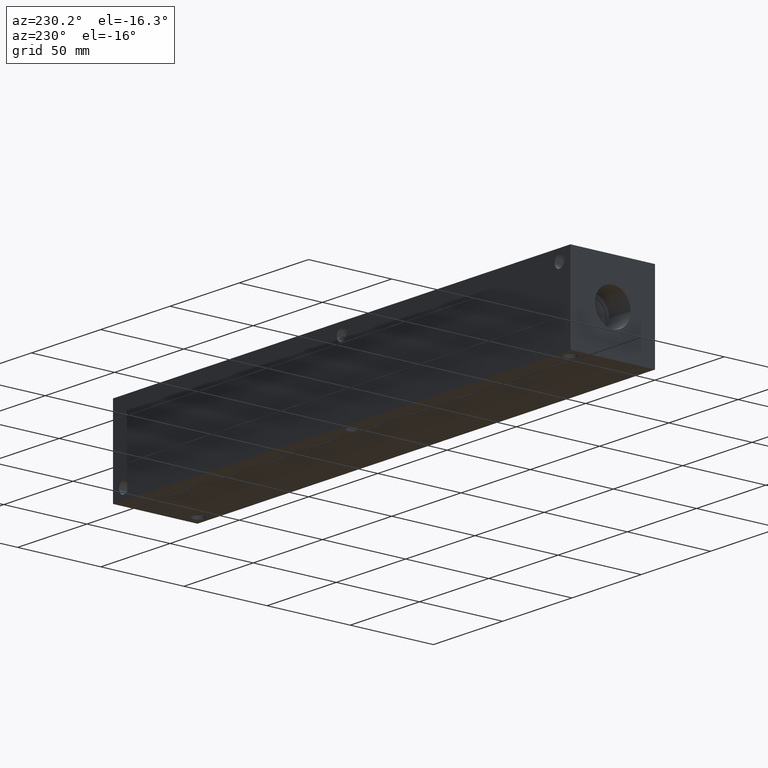
[diagram: clean part render]
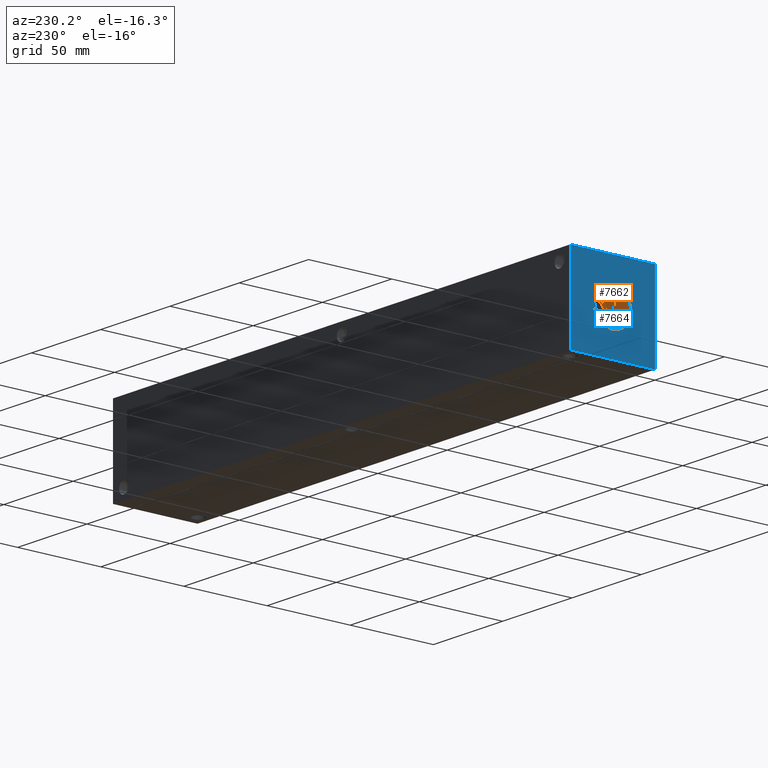
[diagram: same view with the hole feature highlighted: cylindrical wall and planar end face, labeled with their STEP entity ids]
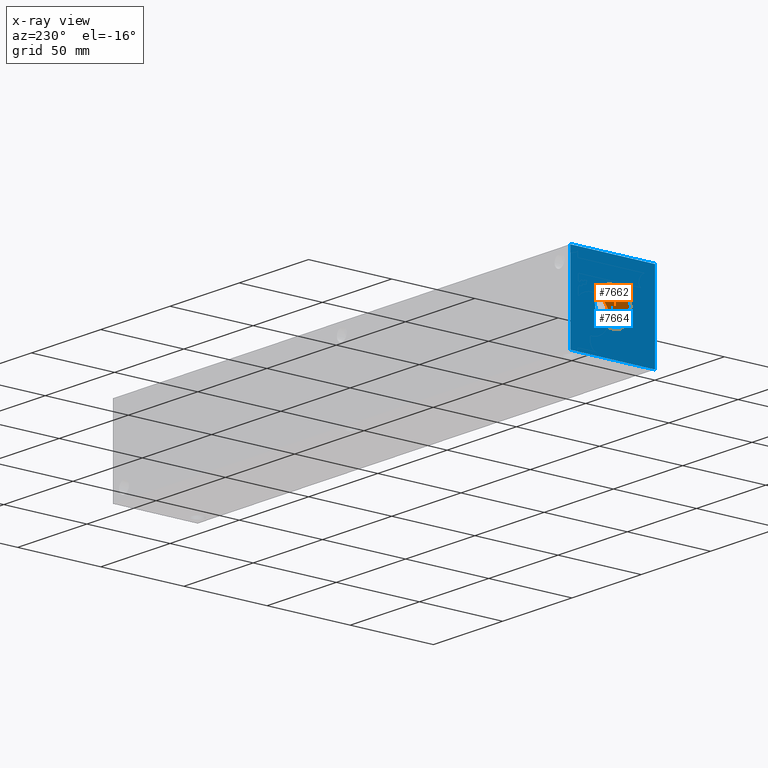
[diagram: x-ray of the same camera — body ghosted, the hole faces saturated]
A machine part, auxiliary view. The highlighted faces form one hole feature of diameter 21.59 mm: the cylindrical wall (entity #7662, orange) and its adjacent planar end face (entity #7664, blue) — they share a circular edge in the B-rep.
The next image is the same camera in x-ray (body ghosted, the hole faces saturated) — the bore reads through the body.
Wall:
#78=CYLINDRICAL_SURFACE('',#8073,10.795);
#191=CIRCLE('',#8070,10.795);
#192=CIRCLE('',#8071,10.795);
#194=CIRCLE('',#8074,10.795);
#195=CIRCLE('',#8075,10.795);
#867=FACE_OUTER_BOUND('',#1312,.T.);
#1312=EDGE_LOOP('',(#6787,#6788,#6789,#6790,#6791,#6792));
#2015=LINE('',#13294,#2703);
#2703=VECTOR('',#9547,10.795);
#3666=VERTEX_POINT('',#13283);
#3667=VERTEX_POINT('',#13284);
#3669=VERTEX_POINT('',#13290);
#3670=VERTEX_POINT('',#13291);
#4718=EDGE_CURVE('',#3666,#3667,#191,.T.);
#4719=EDGE_CURVE('',#3667,#3666,#192,.T.);
#4721=EDGE_CURVE('',#3669,#3670,#194,.T.);
#4722=EDGE_CURVE('',#3670,#3669,#195,.T.);
#4723=EDGE_CURVE('',#3670,#3667,#2015,.T.);
#6787=ORIENTED_EDGE('',*,*,#4721,.F.);
#6788=ORIENTED_EDGE('',*,*,#4722,.F.);
#6789=ORIENTED_EDGE('',*,*,#4723,.T.);
#6790=ORIENTED_EDGE('',*,*,#4718,.F.);
#6791=ORIENTED_EDGE('',*,*,#4719,.F.);
#6792=ORIENTED_EDGE('',*,*,#4723,.F.);
#7662=ADVANCED_FACE('',(#867),#78,.F.);
#8070=AXIS2_PLACEMENT_3D('',#13285,#9535,#9536);
#8071=AXIS2_PLACEMENT_3D('',#13286,#9537,#9538);
#8073=AXIS2_PLACEMENT_3D('',#13289,#9541,#9542);
#8074=AXIS2_PLACEMENT_3D('',#13292,#9543,#9544);
#8075=AXIS2_PLACEMENT_3D('',#13293,#9545,#9546);
#9535=DIRECTION('center_axis',(-1.,0.,0.));
#9536=DIRECTION('ref_axis',(0.,1.,0.));
#9537=DIRECTION('center_axis',(-1.,0.,0.));
#9538=DIRECTION('ref_axis',(0.,1.,0.));
#9541=DIRECTION('center_axis',(-1.,0.,0.));
#9542=DIRECTION('ref_axis',(0.,1.,0.));
#9543=DIRECTION('center_axis',(1.,0.,0.));
#9544=DIRECTION('ref_axis',(0.,1.,0.));
#9545=DIRECTION('center_axis',(1.,0.,0.));
#9546=DIRECTION('ref_axis',(0.,1.,0.));
#9547=DIRECTION('',(1.,0.,0.));
#13283=CARTESIAN_POINT('',(15.367,36.195,25.4));
#13284=CARTESIAN_POINT('',(15.367,14.605,25.4));
#13285=CARTESIAN_POINT('Origin',(15.367,25.4,25.4));
#13286=CARTESIAN_POINT('Origin',(15.367,25.4,25.4));
#13289=CARTESIAN_POINT('Origin',(7.6835,25.4,25.4));
#13290=CARTESIAN_POINT('',(0.,36.195,25.4));
#13291=CARTESIAN_POINT('',(0.,14.605,25.4));
#13292=CARTESIAN_POINT('Origin',(0.,25.4,25.4));
#13293=CARTESIAN_POINT('Origin',(0.,25.4,25.4));
#13294=CARTESIAN_POINT('',(7.6835,14.605,25.4));
End face:
#194=CIRCLE('',#8074,10.795);
#195=CIRCLE('',#8075,10.795);
#249=FACE_BOUND('',#1315,.T.);
#477=PLANE('',#8077);
#869=FACE_OUTER_BOUND('',#1314,.T.);
#1314=EDGE_LOOP('',(#6798,#6799,#6800,#6801));
#1315=EDGE_LOOP('',(#6802,#6803));
#1585=LINE('',#12001,#2273);
#2017=LINE('',#13300,#2705);
#2018=LINE('',#13301,#2706);
#2019=LINE('',#13302,#2707);
#2273=VECTOR('',#8443,10.);
#2705=VECTOR('',#9553,10.);
#2706=VECTOR('',#9554,10.);
#2707=VECTOR('',#9555,10.);
#3269=VERTEX_POINT('',#11994);
#3272=VERTEX_POINT('',#11999);
#3669=VERTEX_POINT('',#13290);
#3670=VERTEX_POINT('',#13291);
#3671=VERTEX_POINT('',#13298);
#3672=VERTEX_POINT('',#13299);
#4149=EDGE_CURVE('',#3272,#3269,#1585,.T.);
#4721=EDGE_CURVE('',#3669,#3670,#194,.T.);
#4722=EDGE_CURVE('',#3670,#3669,#195,.T.);
#4725=EDGE_CURVE('',#3671,#3672,#2017,.T.);
#4726=EDGE_CURVE('',#3672,#3269,#2018,.T.);
#4727=EDGE_CURVE('',#3671,#3272,#2019,.T.);
#6798=ORIENTED_EDGE('',*,*,#4725,.T.);
#6799=ORIENTED_EDGE('',*,*,#4726,.T.);
#6800=ORIENTED_EDGE('',*,*,#4149,.F.);
#6801=ORIENTED_EDGE('',*,*,#4727,.F.);
#6802=ORIENTED_EDGE('',*,*,#4721,.T.);
#6803=ORIENTED_EDGE('',*,*,#4722,.T.);
#7664=ADVANCED_FACE('',(#869,#249),#477,.T.);
#8074=AXIS2_PLACEMENT_3D('',#13292,#9543,#9544);
#8075=AXIS2_PLACEMENT_3D('',#13293,#9545,#9546);
#8077=AXIS2_PLACEMENT_3D('',#13297,#9551,#9552);
#8443=DIRECTION('',(0.,-1.,0.));
#9543=DIRECTION('center_axis',(1.,0.,0.));
#9544=DIRECTION('ref_axis',(0.,1.,0.));
#9545=DIRECTION('center_axis',(1.,0.,0.));
#9546=DIRECTION('ref_axis',(0.,1.,0.));
#9551=DIRECTION('center_axis',(-1.,0.,0.));
#9552=DIRECTION('ref_axis',(0.,-1.,0.));
#9553=DIRECTION('',(0.,-1.,0.));
#9554=DIRECTION('',(0.,0.,1.));
#9555=DIRECTION('',(0.,0.,1.));
#11994=CARTESIAN_POINT('',(0.,0.,50.8));
#11999=CARTESIAN_POINT('',(0.,50.8,50.8));
#12001=CARTESIAN_POINT('',(0.,50.8,50.8));
#13290=CARTESIAN_POINT('',(0.,36.195,25.4));
#13291=CARTESIAN_POINT('',(0.,14.605,25.4));
#13292=CARTESIAN_POINT('Origin',(0.,25.4,25.4));
#13293=CARTESIAN_POINT('Origin',(0.,25.4,25.4));
#13297=CARTESIAN_POINT('Origin',(0.,50.8,0.));
#13298=CARTESIAN_POINT('',(0.,50.8,0.));
#13299=CARTESIAN_POINT('',(0.,0.,0.));
#13300=CARTESIAN_POINT('',(0.,50.8,0.));
#13301=CARTESIAN_POINT('',(0.,0.,0.));
#13302=CARTESIAN_POINT('',(0.,50.8,0.));